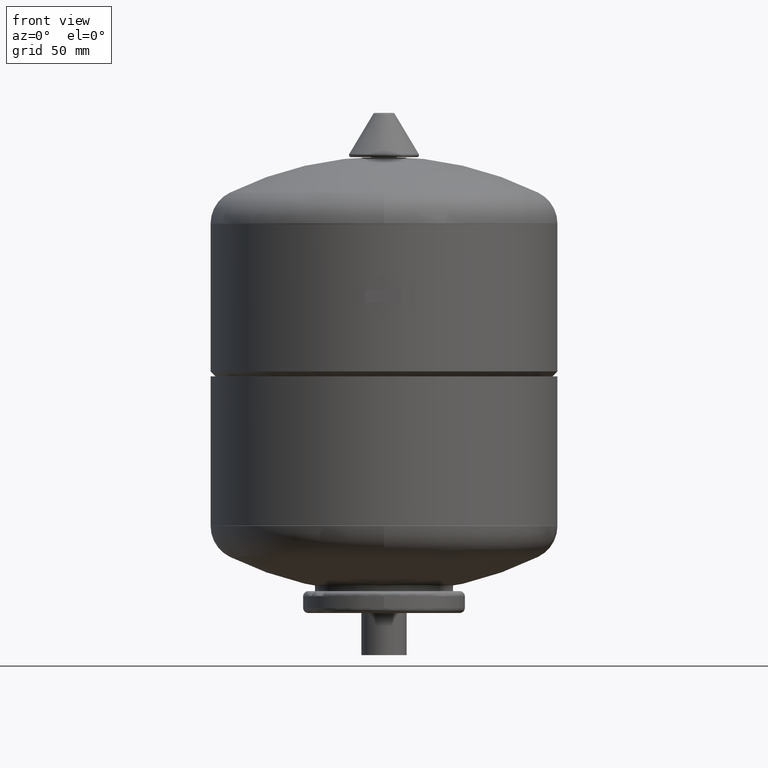
[diagram: clean part render]
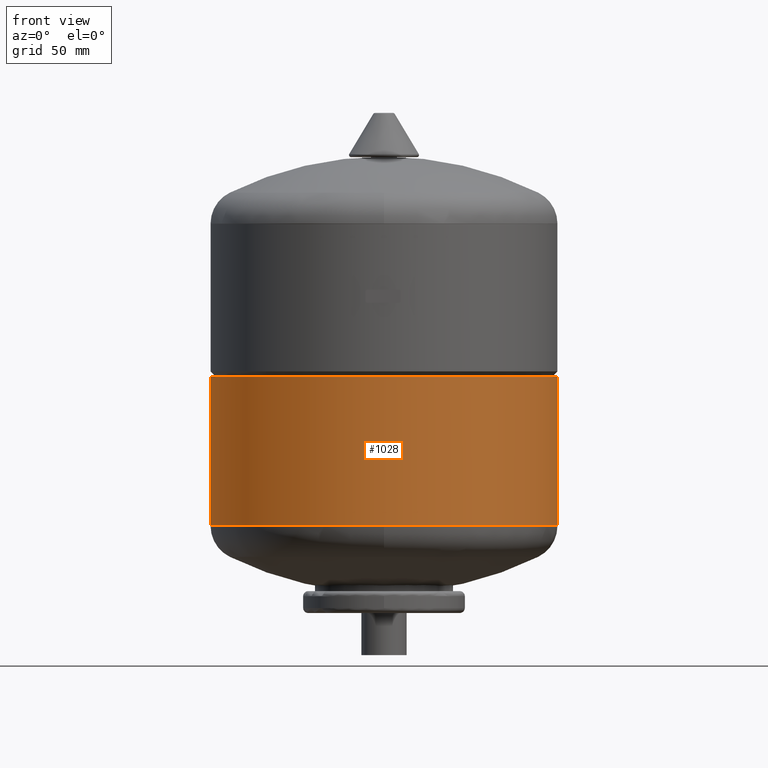
[diagram: same view with one face highlighted and labeled with its STEP entity id]
A machine part, front view. The second image highlights one B-rep face of the part: STEP entity #1028.
In plain terms, the highlighted cylindrical surface (partial cylindrical patch) has radius 103 mm, axis along (0, 0, 1).
Its self-contained STEP definition (entity closure, byte-faithful):
#987=CARTESIAN_POINT('',(0.0,0.0,116.999999999999970));
#988=DIRECTION('',(0.0,0.0,1.0));
#989=DIRECTION('',(1.0,0.0,0.0));
#990=AXIS2_PLACEMENT_3D('',#987,#988,#989);
#991=CYLINDRICAL_SURFACE('',#990,102.999999999999970);
#992=CARTESIAN_POINT('',(102.999999999999990,0.0,165.500000000000000));
#993=VERTEX_POINT('',#992);
#994=CARTESIAN_POINT('',(102.999999999999970,0.0,76.999999999999972));
#995=VERTEX_POINT('',#994);
#996=CARTESIAN_POINT('',(102.999999999999990,0.0,165.500000000000000));
#997=DIRECTION('',(0.0,0.0,-1.0));
#998=VECTOR('',#997,88.500000000000028);
#999=LINE('',#996,#998);
#1000=EDGE_CURVE('',#993,#995,#999,.T.);
#1001=ORIENTED_EDGE('',*,*,#1000,.F.);
#1002=CARTESIAN_POINT('',(-102.999999999999970,-1.261345E-014,165.500000000000000));
#1003=VERTEX_POINT('',#1002);
#1004=CARTESIAN_POINT('',(0.0,0.0,165.500000000000000));
#1005=DIRECTION('',(0.0,0.0,1.0));
#1006=DIRECTION('',(1.0,0.0,0.0));
#1007=AXIS2_PLACEMENT_3D('',#1004,#1005,#1006);
#1008=CIRCLE('',#1007,102.999999999999990);
#1009=EDGE_CURVE('',#1003,#993,#1008,.T.);
#1010=ORIENTED_EDGE('',*,*,#1009,.F.);
#1011=CARTESIAN_POINT('',(-102.999999999999970,1.261345E-014,76.999999999999972));
#1012=VERTEX_POINT('',#1011);
#1013=CARTESIAN_POINT('',(-102.999999999999970,-1.261345E-014,165.500000000000000));
#1014=DIRECTION('',(0.0,0.0,-1.0));
#1015=VECTOR('',#1014,88.500000000000028);
#1016=LINE('',#1013,#1015);
#1017=EDGE_CURVE('',#1003,#1012,#1016,.T.);
#1018=ORIENTED_EDGE('',*,*,#1017,.T.);
#1019=CARTESIAN_POINT('',(0.0,0.0,76.999999999999972));
#1020=DIRECTION('',(0.0,0.0,-1.0));
#1021=DIRECTION('',(1.0,0.0,0.0));
#1022=AXIS2_PLACEMENT_3D('',#1019,#1020,#1021);
#1023=CIRCLE('',#1022,102.999999999999970);
#1024=EDGE_CURVE('',#995,#1012,#1023,.T.);
#1025=ORIENTED_EDGE('',*,*,#1024,.F.);
#1026=EDGE_LOOP('',(#1001,#1010,#1018,#1025));
#1027=FACE_OUTER_BOUND('',#1026,.T.);
#1028=ADVANCED_FACE('',(#1027),#991,.T.);